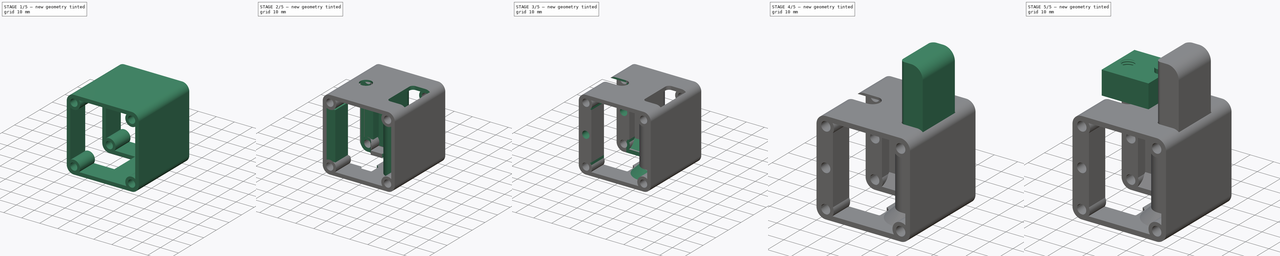
[diagram: build sequence overview — one tinted view per stage of 5, left to right]
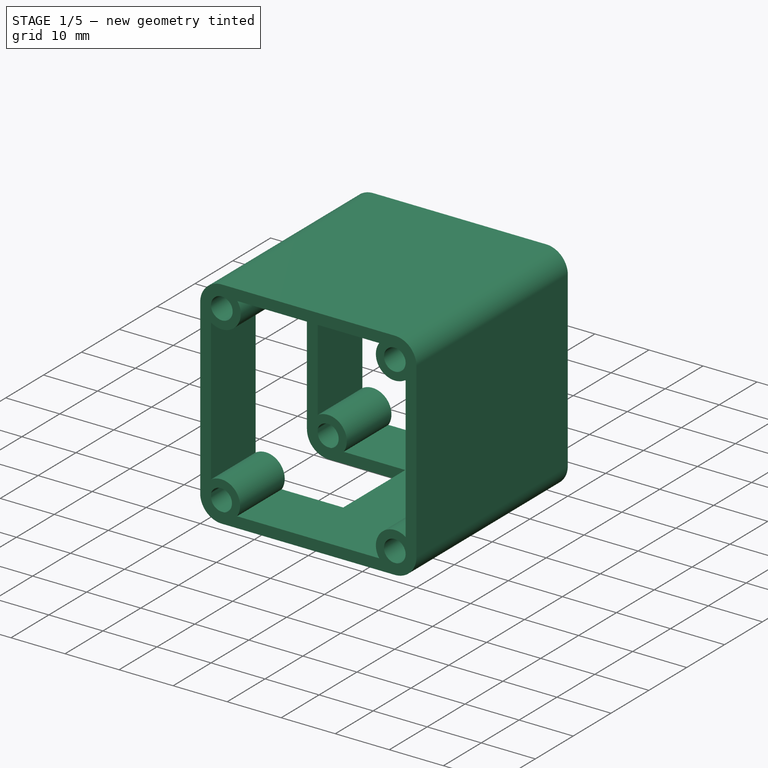
[diagram: stage 1 of 5 — iso view after this stage's code; geometry added in this stage tinted green]
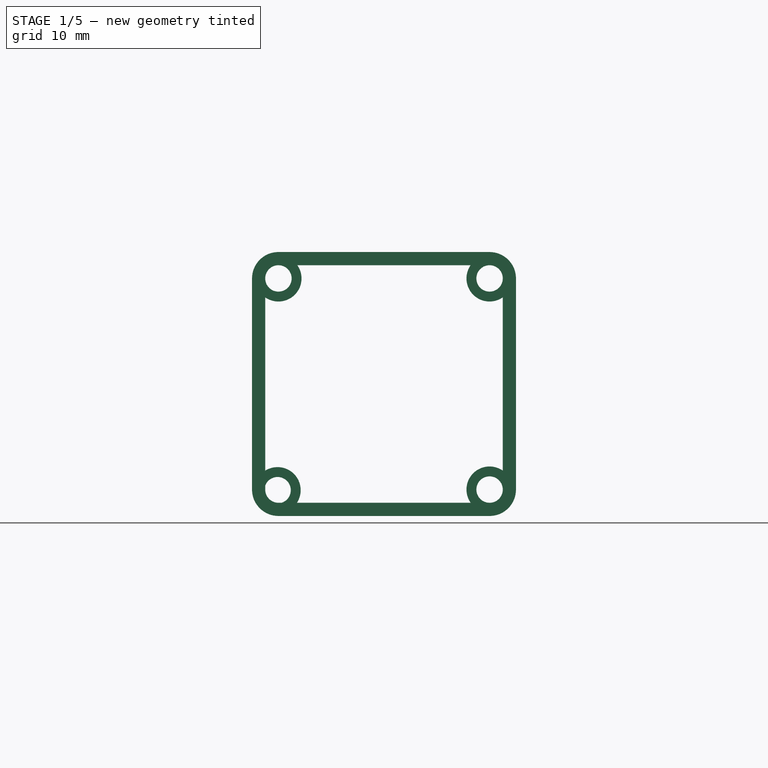
[diagram: stage 1 of 5 — front view after this stage's code; geometry added in this stage tinted green]
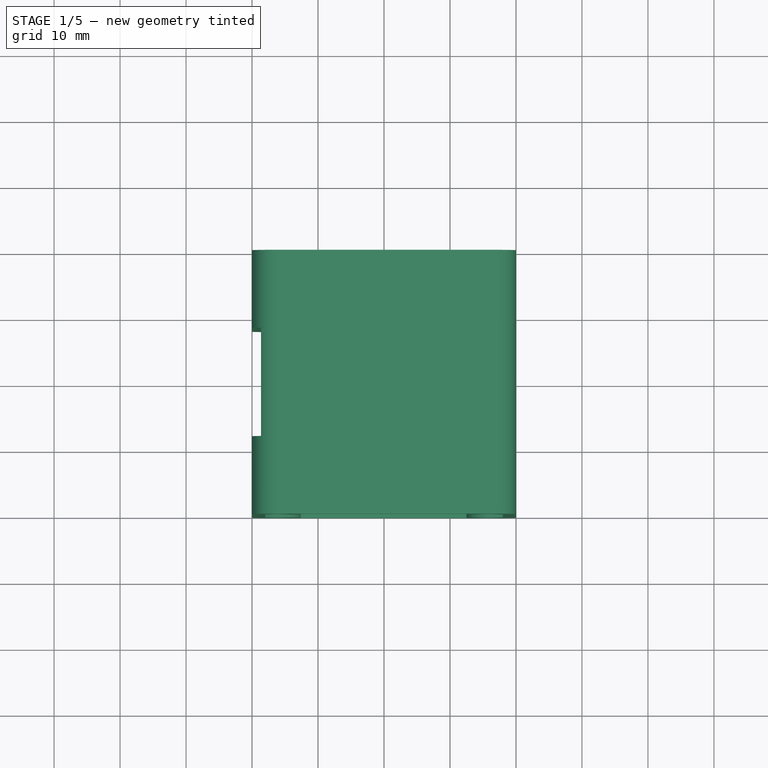
[diagram: stage 1 of 5 — top view after this stage's code; geometry added in this stage tinted green]
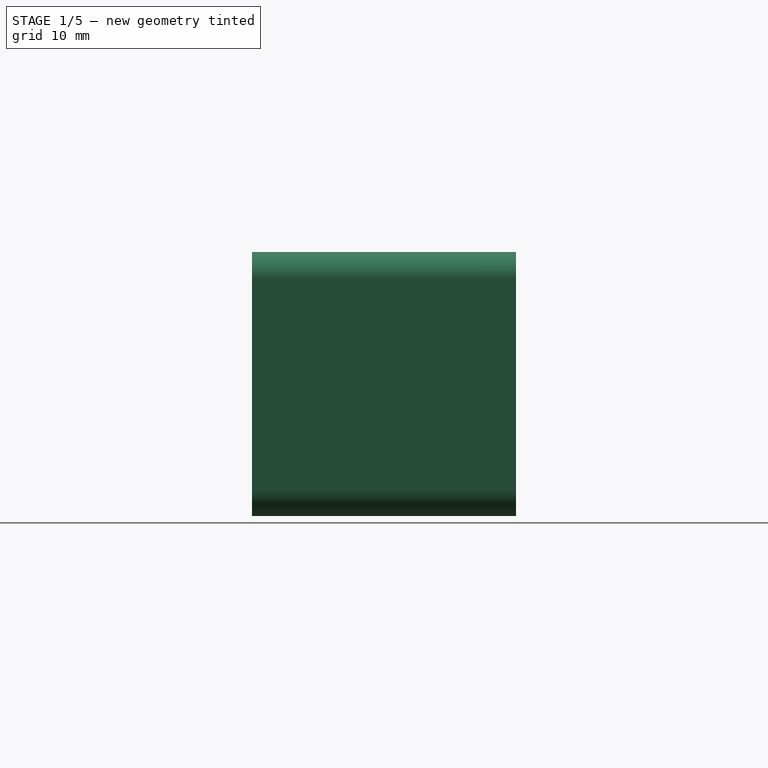
[diagram: stage 1 of 5 — right view after this stage's code; geometry added in this stage tinted green]
FCSTD DOCUMENT  (FreeCAD 0.20R29177 (Git))
Label: AT_801a_extruder_design
License: All rights reserved
LicenseURL: http://en.wikipedia.org/wiki/All_rights_reserved
objects: Sketcher::SketchObject×17, PartDesign::Pocket×10, PartDesign::Pad×10, PartDesign::ShapeBinder×5, PartDesign::Body×4, PartDesign::Chamfer×4, Part::FeaturePython×2, PartDesign::Hole×2, PartDesign::Fillet×2, PartDesign::FeatureBase×1, PartDesign::AdditivePipe×1, PartDesign::SubtractivePipe×1
note: 89 computed .brp shape members not serialized (recipe doc carries the construction recipe); baked Part::Feature solids carry a one-line shape summary decoded from their .brp

FEATURE [Part::FeaturePython] b_V_Slot_20x20x364_Linear_Rail_001_  label="V-Slot 20x20x364 Linear Rail_001"  # a2plus imported part (geometry in sourceFile) (typed FeaturePython)
  a2p_Version = V0.1
  fixedPosition = true
  objectType = a2pPart
  sourceFile = .\V-Slot 20x20x364 Linear Rail.FCStd
  subassemblyImport = false
  timeLastImport = 1656483426
  updateColors = true
FEATURE [PartDesign::FeatureBase] BaseFeature
  BaseFeature = -> b_V_Slot_20x20x364_Linear_Rail_001_
FEATURE [Sketcher::SketchObject] Sketch
  FullyConstrained = false
  MapMode = 5
  Placement = pos=(10,-1.8e-15,0) rot=(0.57735,0.57735,0.57735;2.0944rad)
  Support = -> [BaseFeature]
  sketch-geometry (4):
    g0: LineSegment StartX=-39.6578 StartY=378.391 StartZ=0 EndX=60.3022 EndY=378.391 EndZ=0
    g1: LineSegment StartX=60.3022 StartY=378.391 StartZ=0 EndX=60.3022 EndY=40 EndZ=0
    g2: LineSegment StartX=60.3022 StartY=40 StartZ=0 EndX=-39.6578 EndY=40 EndZ=0
    g3: LineSegment StartX=-39.6578 StartY=40 StartZ=0 EndX=-39.6578 EndY=378.391 EndZ=0
  constraints (9):
    c: Coincident(g0,g1)
    c: Coincident(g1,g2)
    c: Coincident(g2,g3)
    c: Coincident(g3,g0)
    c: Horizontal(g0)
    c: Horizontal(g2)
    c: Vertical(g1)
    c: Vertical(g3)
    c: DistanceY(g-1,g1) = 40
FEATURE [PartDesign::Pocket] Pocket
  BaseFeature = -> BaseFeature
  Direction = (-1,1e-16,1e-16)
  Length = 5
  Length2 = 5
  Profile = -> Sketch
  ReferenceAxis = -> Sketch [N_Axis]
  Type = 1
FEATURE [Sketcher::SketchObject] Sketch001
  FullyConstrained = false
  MapMode = 5
  Placement = pos=(4.4e-15,-4.4e-15,40) rot=(0,0,1;0rad)
  Support = -> [Pocket]
  sketch-geometry (1):
    g0: Circle CenterX=0 CenterY=0 CenterZ=0 NormalX=0 NormalY=0 NormalZ=1 AngleXU=0 Radius=1.17399
  constraints (1):
    c: Coincident(g0,g-1)
FEATURE [PartDesign::Hole] Hole
  BaseFeature = -> Pocket
  CustomThreadClearance = 0
  Depth = 20
  DepthType = 0
  Diameter = 5.026
  DrillForDepth = false
  DrillPoint = 1
  DrillPointAngle = 118
  HoleCutCountersinkAngle = 90
  HoleCutCustomValues = false
  HoleCutDepth = 0
  HoleCutDiameter = 6.1
  HoleCutType = 0
  ModelThread = true
  Profile = -> Sketch001
  Tapered = false
  TaperedAngle = 90
  ThreadClass = 0
  ThreadDepth = 20
  ThreadDepthType = 0
  ThreadDirection = 0
  ThreadFit = 0
  ThreadSize = 14
  ThreadType = 1
  Threaded = true
  UseCustomThreadClearance = false
FEATURE [PartDesign::Body] Body001
  Group = -> [ShapeBinder,Sketch002,Pad,Sketch003,Hole001]
  Origin = -> Origin001
  Tip = -> Hole001
FEATURE [PartDesign::ShapeBinder] ShapeBinder001
  Support = -> [Hole]
  TraceSupport = false
FEATURE [PartDesign::ShapeBinder] ShapeBinder002
  Placement = pos=(0,0,19.5) rot=(0,0,1;0rad)
  Support = -> [Hole001]
  TraceSupport = false
FEATURE [Sketcher::SketchObject] Sketch004
  AttachmentOffset = pos=(0,0,10) rot=(0,0,1;0rad)
  ExternalGeometry = -> [ShapeBinder001]
  FullyConstrained = true
  MapMode = 5
  Placement = pos=(3.6e-15,-20,2.2e-15) rot=(1,0,0;1.5708rad)
  Support = -> [ShapeBinder001]
  sketch-geometry (20):
    g0: ArcOfCircle CenterX=-6 CenterY=9 CenterZ=0 NormalX=0 NormalY=0 NormalZ=1 AngleXU=0 Radius=4 StartAngle=3.14159 EndAngle=4.71239
    g1: LineSegment StartX=-10 StartY=9 StartZ=0 EndX=-10 EndY=41 EndZ=0
    g2: ArcOfCircle CenterX=-6 CenterY=41 CenterZ=0 NormalX=0 NormalY=0 NormalZ=1 AngleXU=0 Radius=4 StartAngle=1.5708 EndAngle=3.14159
    g3: LineSegment StartX=-6 StartY=45 StartZ=0 EndX=26 EndY=45 EndZ=0
    g4: ArcOfCircle CenterX=26 CenterY=41 CenterZ=0 NormalX=0 NormalY=0 NormalZ=1 AngleXU=0 Radius=4 StartAngle=0 EndAngle=1.5708
    g5: LineSegment StartX=30 StartY=41 StartZ=0 EndX=30 EndY=9 EndZ=0
    g6: ArcOfCircle CenterX=26 CenterY=9 CenterZ=0 NormalX=0 NormalY=0 NormalZ=1 AngleXU=0 Radius=4 StartAngle=4.71239 EndAngle=6.28319
    g7: LineSegment StartX=26 StartY=5 StartZ=0 EndX=-6 EndY=5 EndZ=0
    g8: GeomPoint X=-10 Y=5 Z=0
    g9: GeomPoint X=30 Y=45 Z=0
    g10: ArcOfCircle CenterX=-6 CenterY=41 CenterZ=0 NormalX=0 NormalY=0 NormalZ=1 AngleXU=0 Radius=2 StartAngle=1.5708 EndAngle=3.14159
    g11: LineSegment StartX=-6 StartY=43 StartZ=0 EndX=26 EndY=43 EndZ=0
    g12: ArcOfCircle CenterX=26 CenterY=41 CenterZ=0 NormalX=0 NormalY=0 NormalZ=1 AngleXU=0 Radius=2 StartAngle=0 EndAngle=1.5708
    g13: LineSegment StartX=28 StartY=41 StartZ=0 EndX=28 EndY=9 EndZ=0
    g14: ArcOfCircle CenterX=26 CenterY=9 CenterZ=0 NormalX=0 NormalY=0 NormalZ=1 AngleXU=0 Radius=2 StartAngle=4.71239 EndAngle=6.28319
    g15: LineSegment StartX=26 StartY=7 StartZ=0 EndX=-6 EndY=7 EndZ=0
    g16: ArcOfCircle CenterX=-6 CenterY=9 CenterZ=0 NormalX=0 NormalY=0 NormalZ=1 AngleXU=0 Radius=2 StartAngle=3.14159 EndAngle=4.71239
    g17: LineSegment StartX=-8 StartY=9 StartZ=0 EndX=-8 EndY=41 EndZ=0
    g18: GeomPoint X=-8 Y=43 Z=0
    g19: GeomPoint X=28 Y=7 Z=0
  constraints (46):
    c: Tangent(g0,g1) = 1.5708
    c: Tangent(g1,g2) = 1.5708
    c: Tangent(g2,g3) = 1.5708
    c: Tangent(g3,g4) = 1.5708
    c: Tangent(g4,g5) = 1.5708
    c: Tangent(g5,g6) = 1.5708
    c: Tangent(g6,g7) = 1.5708
    c: Tangent(g7,g0) = 1.5708
    c: Horizontal(g3)
    c: Horizontal(g7)
    c: Vertical(g1)
    c: Vertical(g5)
    c: Equal(g0,g2)
    c: Equal(g2,g4)
    c: Equal(g4,g6)
    c: PointOnObject(g8,g1)
    c: PointOnObject(g8,g7)
    c: PointOnObject(g9,g3)
    c: PointOnObject(g9,g5)
    c: DistanceX(g1,g4) = 40
    c: DistanceY(g6,g3) = 40
    c: DistanceX(g2,g4) = 32
    c: Vertical(g0,g-3)
    c: DistanceY(g-4,g2) = 5
    c: Tangent(g10,g11) = 1.5708
    c: Tangent(g11,g12) = 1.5708
    c: Tangent(g12,g13) = 1.5708
    c: Tangent(g13,g14) = 1.5708
    c: Tangent(g14,g15) = 1.5708
    c: Tangent(g15,g16) = 1.5708
    c: Tangent(g16,g17) = 1.5708
    c: Tangent(g17,g10) = 1.5708
    c: Horizontal(g11)
    c: Horizontal(g15)
    c: Vertical(g13)
    c: Vertical(g17)
    c: Equal(g10,g12)
    c: Equal(g12,g14)
    c: Equal(g14,g16)
    c: PointOnObject(g18,g11)
    c: PointOnObject(g18,g17)
    c: PointOnObject(g19,g13)
    c: PointOnObject(g19,g15)
    c: Coincident(g10,g2)
    c: Coincident(g14,g6)
    c: DistanceX(g13,g5) = 2
FEATURE [PartDesign::Pad] Pad001
  Direction = (2e-16,-1,2e-16)
  Length = 40
  Length2 = 10
  Profile = -> Sketch004
  ReferenceAxis = -> Sketch004 [N_Axis]
  Reversed = true
  Type = 0
FEATURE [Sketcher::SketchObject] Sketch005
  ExternalGeometry = -> [Pad001]
  FullyConstrained = false
  MapMode = 5
  Placement = pos=(3.8e-15,-20,4.2e-15) rot=(1,0,0;1.5708rad)
  Support = -> [Pad001]
  sketch-geometry (13):
    g0: LineSegment StartX=26 StartY=9 StartZ=0 EndX=26 EndY=41 EndZ=0
    g1: LineSegment StartX=26 StartY=41 StartZ=0 EndX=-6 EndY=41 EndZ=0
    g2: LineSegment StartX=-6 StartY=41 StartZ=0 EndX=-6 EndY=9 EndZ=0
    g3: LineSegment StartX=-6 StartY=9 StartZ=0 EndX=26 EndY=9 EndZ=0
    g4: Circle CenterX=10 CenterY=25 CenterZ=0 NormalX=0 NormalY=0 NormalZ=1 AngleXU=0 Radius=22.6274
    g5: Circle CenterX=26 CenterY=41 CenterZ=0 NormalX=0 NormalY=0 NormalZ=1 AngleXU=0 Radius=3.5
    g6: Circle CenterX=-6 CenterY=41 CenterZ=0 NormalX=0 NormalY=0 NormalZ=1 AngleXU=0 Radius=3.5
    g7: Circle CenterX=-6.12931 CenterY=8.90586 CenterZ=0 NormalX=0 NormalY=0 NormalZ=1 AngleXU=0 Radius=3.5
    g8: Circle CenterX=26 CenterY=9 CenterZ=0 NormalX=0 NormalY=0 NormalZ=1 AngleXU=0 Radius=3.5
    g9: Circle CenterX=-6 CenterY=41 CenterZ=0 NormalX=0 NormalY=0 NormalZ=1 AngleXU=0 Radius=2
    g10: Circle CenterX=26 CenterY=41 CenterZ=0 NormalX=0 NormalY=0 NormalZ=1 AngleXU=0 Radius=2
    g11: Circle CenterX=-6.12931 CenterY=8.90586 CenterZ=0 NormalX=0 NormalY=0 NormalZ=1 AngleXU=0 Radius=2
    g12: Circle CenterX=26 CenterY=9 CenterZ=0 NormalX=0 NormalY=0 NormalZ=1 AngleXU=0 Radius=2
  constraints (29):
    c: Coincident(g0,g1)
    c: Coincident(g1,g2)
    c: Coincident(g2,g3)
    c: Coincident(g3,g0)
    c: Equal(g0,g1)
    c: Equal(g0,g2)
    c: Equal(g0,g3)
    c: PointOnObject(g0,g4)
    c: PointOnObject(g1,g4)
    c: PointOnObject(g2,g4)
    c: PointOnObject(g3,g4)
    c: Symmetric(g-3,g-4,g4)
    c: Horizontal(g1)
    c: DistanceX(g1,g1) = 32
    c: Coincident(g5,g0)
    c: Coincident(g6,g1)
    c: Coincident(g8,g0)
    c: Equal(g7,g6)
    c: Equal(g6,g5)
    c: Equal(g5,g8)
    c: Coincident(g9,g6)
    c: Coincident(g10,g5)
    c: Coincident(g11,g7)
    c: Coincident(g12,g8)
    c: Equal(g9,g11)
    c: Equal(g11,g12)
    c: Equal(g12,g10)
    c: Radius(g10) = 2
    c: Radius(g5) = 3.5
FEATURE [PartDesign::Pad] Pad002
  BaseFeature = -> Pad001
  Direction = (2e-16,-1,2e-16)
  Length = 40
  Length2 = 10
  Profile = -> Sketch005
  ReferenceAxis = -> Sketch005 [N_Axis]
  Reversed = true
  Type = 0
FEATURE [Sketcher::SketchObject] Sketch006
  ExternalGeometry = -> [ShapeBinder001]
  FullyConstrained = false
  MapMode = 5
  Placement = pos=(0,0,0) rot=(1,0,0;3.14159rad)
  Support = -> [ShapeBinder001]
  sketch-geometry (4):
    g0: LineSegment StartX=8.2 StartY=8.2 StartZ=0 EndX=-11.6601 EndY=8.2 EndZ=0
    g1: LineSegment StartX=-11.6601 StartY=8.2 StartZ=0 EndX=-11.6601 EndY=-8.2 EndZ=0
    g2: LineSegment StartX=-11.6601 StartY=-8.2 StartZ=0 EndX=8.2 EndY=-8.2 EndZ=0
    g3: LineSegment StartX=8.2 StartY=-8.2 StartZ=0 EndX=8.2 EndY=8.2 EndZ=0
  constraints (11):
    c: Coincident(g0,g1)
    c: Coincident(g1,g2)
    c: Coincident(g2,g3)
    c: Coincident(g3,g0)
    c: Horizontal(g0)
    c: Horizontal(g2)
    c: Vertical(g1)
    c: Vertical(g3)
    c: Horizontal(g0,g-3)
    c: Vertical(g0,g-4)
    c: Horizontal(g2,g-6)
FEATURE [PartDesign::Pocket] Pocket001
  BaseFeature = -> Pad002
  Direction = (0,0,1)
  Length = 44
  Length2 = 5
  Profile = -> Sketch006
  ReferenceAxis = -> Sketch006 [N_Axis]
  Type = 0
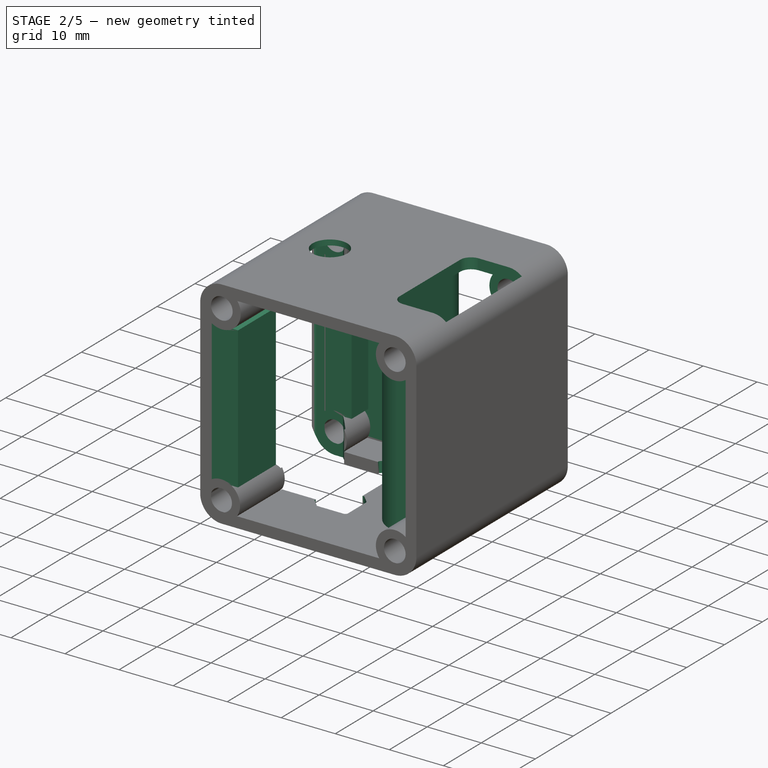
[diagram: stage 2 of 5 — iso view after this stage's code; geometry added in this stage tinted green]
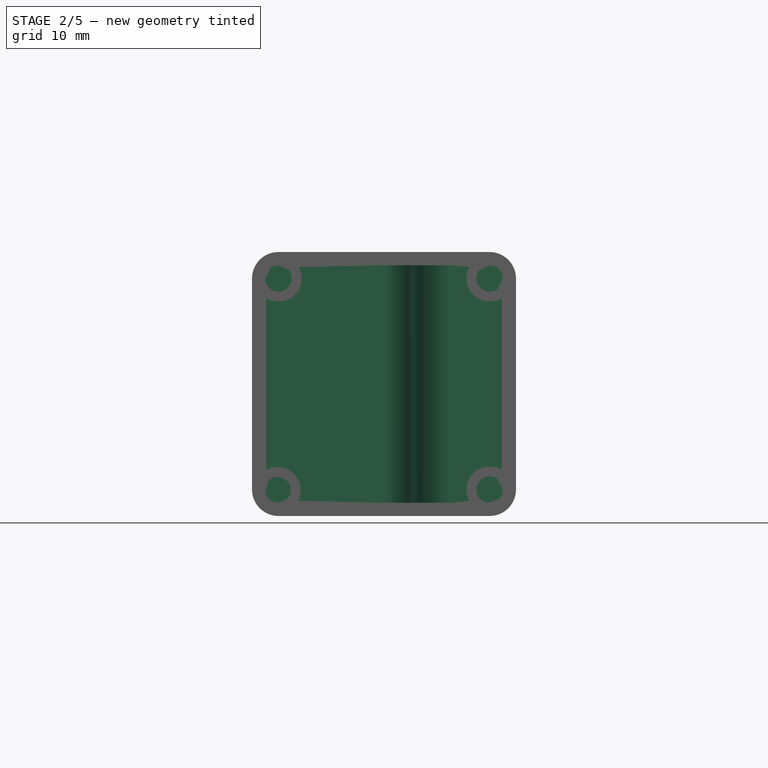
[diagram: stage 2 of 5 — front view after this stage's code; geometry added in this stage tinted green]
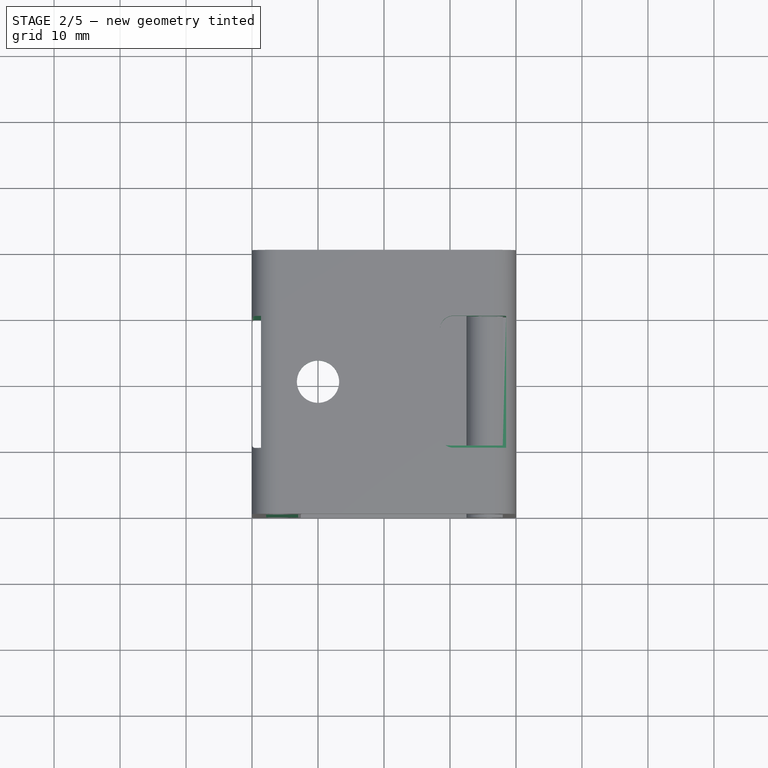
[diagram: stage 2 of 5 — top view after this stage's code; geometry added in this stage tinted green]
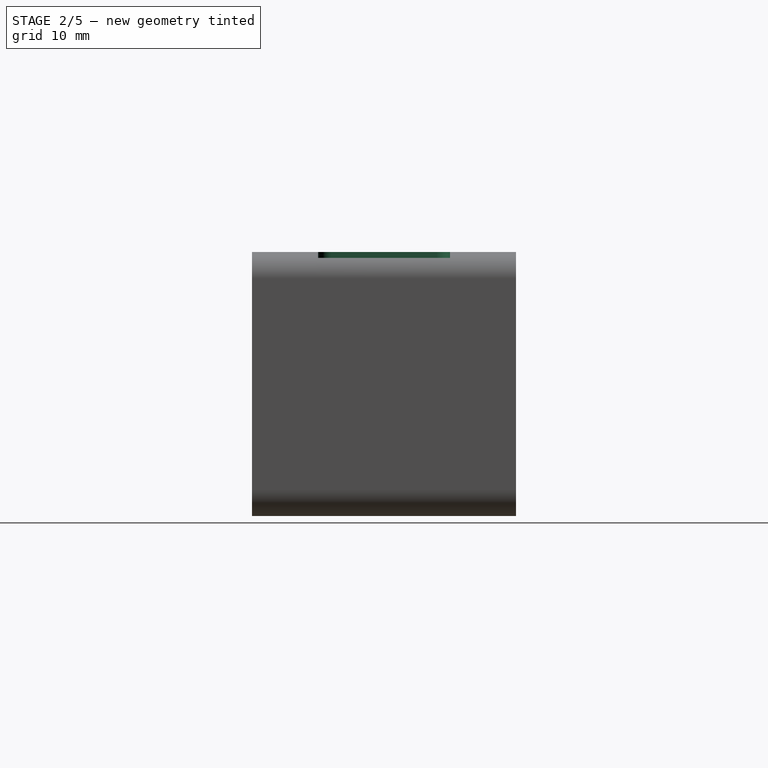
[diagram: stage 2 of 5 — right view after this stage's code; geometry added in this stage tinted green]
FEATURE [PartDesign::Pocket] Pocket002
  BaseFeature = -> Pocket001
  Direction = (0,0,1)
  Length = 44
  Length2 = 5
  Profile = -> ShapeBinder001 [Face2]
  Type = 0
FEATURE [Sketcher::SketchObject] Sketch007
  FullyConstrained = true
  MapMode = 5
  Placement = pos=(0,0,44) rot=(1,0,0;3.14159rad)
  Support = -> [Pocket002]
  sketch-geometry (1):
    g0: Circle CenterX=0 CenterY=0 CenterZ=0 NormalX=0 NormalY=0 NormalZ=1 AngleXU=0 Radius=3.2
  constraints (2):
    c: Coincident(g0,g-1)
    c: Radius(g0) = 3.2
FEATURE [PartDesign::Pocket] Pocket003
  BaseFeature = -> Pocket002
  Direction = (0,0,1)
  Length = 5
  Length2 = 5
  Profile = -> Sketch007
  ReferenceAxis = -> Sketch007 [N_Axis]
  Type = 0
FEATURE [Sketcher::SketchObject] Sketch008
  ExternalGeometry = -> [Pocket003]
  FullyConstrained = true
  MapMode = 5
  Placement = pos=(0,1.1e-15,5) rot=(1,0,0;3.14159rad)
  Support = -> [Pocket003]
  sketch-geometry (7):
    g0: LineSegment StartX=-10 StartY=-15 StartZ=0 EndX=10 EndY=-15 EndZ=0
    g1: LineSegment StartX=15 StartY=-10 StartZ=0 EndX=15 EndY=5 EndZ=0
    g2: LineSegment StartX=20 StartY=10 StartZ=0 EndX=30 EndY=10 EndZ=0
    g3: ArcOfCircle CenterX=20 CenterY=5 CenterZ=0 NormalX=0 NormalY=0 NormalZ=1 AngleXU=0 Radius=5 StartAngle=1.5708 EndAngle=3.14159
    g4: GeomPoint X=15 Y=10 Z=0
    g5: ArcOfCircle CenterX=10 CenterY=-10 CenterZ=0 NormalX=0 NormalY=0 NormalZ=1 AngleXU=0 Radius=5 StartAngle=4.71239 EndAngle=6.28319
    g6: GeomPoint X=15 Y=-15 Z=0
  constraints (18):
    c: PointOnObject(g0,g-4)
    c: Horizontal(g0)
    c: Vertical(g1)
    c: PointOnObject(g2,g-5)
    c: Horizontal(g2)
    c: PointOnObject(g4,g1)
    c: PointOnObject(g4,g2)
    c: Tangent(g1,g3) = 1.5708
    c: Tangent(g2,g3) = 1.5708
    c: DistanceY(g2,g-5) = 10
    c: Distance(g1,g-5) = 15
    c: PointOnObject(g6,g0)
    c: PointOnObject(g6,g1)
    c: Tangent(g0,g5) = -1.5708
    c: Tangent(g1,g5) = -1.5708
    c: Radius(g5) = 5
    c: Radius(g3) = 5
    c: DistanceY(g-3,g0) = 5
FEATURE [Sketcher::SketchObject] Sketch009
  ExternalGeometry = -> [Sketch008]
  FullyConstrained = true
  MapMode = 5
  Placement = pos=(30,5.4e-15,0) rot=(0.57735,0.57735,0.57735;2.0944rad)
  Support = -> [Pocket003]
  sketch-geometry (4):
    g0: LineSegment StartX=-9.4 StartY=5 StartZ=0 EndX=-10.6 EndY=5 EndZ=0
    g1: LineSegment StartX=-10.6 StartY=5 StartZ=0 EndX=-10.6 EndY=45 EndZ=0
    g2: LineSegment StartX=-10.6 StartY=45 StartZ=0 EndX=-9.4 EndY=45 EndZ=0
    g3: LineSegment StartX=-9.4 StartY=45 StartZ=0 EndX=-9.4 EndY=5 EndZ=0
  constraints (11):
    c: Coincident(g0,g1)
    c: Coincident(g1,g2)
    c: Coincident(g2,g3)
    c: Coincident(g3,g0)
    c: Horizontal(g0)
    c: Horizontal(g2)
    c: Vertical(g1)
    c: Vertical(g3)
    c: DistanceY(g3,g3) = 40
    c: Symmetric(g0,g0,g-3)
    c: DistanceX(g2,g2) = 1.2
FEATURE [PartDesign::AdditivePipe] AdditivePipe
  AuxilleryCurvelinear = true
  AuxillerySpineTangent = false
  BaseFeature = -> Pocket003
  Binormal = (0,0,0)
  Mode = 0
  Profile = -> Sketch009
  Spine = -> Sketch008
  SpineTangent = false
  Transformation = 0
  Transition = 0
FEATURE [PartDesign::Pocket] Pocket004
  BaseFeature = -> AdditivePipe
  Direction = (0,-1,-1e-16)
  Length = 5
  Length2 = 5
  Profile = -> AdditivePipe [Face159,Face160,Face163,Face162]
  Type = 0
FEATURE [Sketcher::SketchObject] Sketch010
  ExternalGeometry = -> [Pocket004]
  FullyConstrained = true
  MapMode = 5
  Placement = pos=(0,9.9e-15,45) rot=(0,0,1;0rad)
  Support = -> [Pocket004]
  sketch-geometry (8):
    g0: LineSegment StartX=28.5 StartY=-10 StartZ=0 EndX=20.5 EndY=-10 EndZ=0
    g1: LineSegment StartX=18.5 StartY=-8 StartZ=0 EndX=18.5 EndY=8 EndZ=0
    g2: LineSegment StartX=20.5 StartY=10 StartZ=0 EndX=28.5 EndY=10 EndZ=0
    g3: LineSegment StartX=28.5 StartY=10 StartZ=0 EndX=28.5 EndY=-10 EndZ=0
    g4: ArcOfCircle CenterX=20.5 CenterY=-8 CenterZ=0 NormalX=0 NormalY=0 NormalZ=1 AngleXU=0 Radius=2 StartAngle=3.14159 EndAngle=4.71239
    g5: GeomPoint X=18.5 Y=-10 Z=0
    g6: ArcOfCircle CenterX=20.5 CenterY=8 CenterZ=0 NormalX=0 NormalY=0 NormalZ=1 AngleXU=0 Radius=2 StartAngle=1.5708 EndAngle=3.14159
    g7: GeomPoint X=18.5 Y=10 Z=0
  constraints (20):
    c: Coincident(g2,g3)
    c: Coincident(g3,g0)
    c: Horizontal(g0)
    c: Horizontal(g2)
    c: Vertical(g1)
    c: Vertical(g3)
    c: DistanceY(g3,g3) = 20
    c: PointOnObject(g5,g0)
    c: PointOnObject(g5,g1)
    c: Tangent(g0,g4) = 1.5708
    c: Tangent(g1,g4) = 1.5708
    c: PointOnObject(g7,g1)
    c: PointOnObject(g7,g2)
    c: Tangent(g1,g6) = 1.5708
    c: Tangent(g2,g6) = 1.5708
    c: Equal(g4,g6)
    c: Radius(g6) = 2
    c: DistanceX(g1,g2) = 10
    c: DistanceY(g0,g-3) = 0.6
    c: DistanceX(g-4,g2) = 0.5
FEATURE [PartDesign::Pocket] Pocket005
  BaseFeature = -> Pocket004
  Direction = (0,-2e-16,-1)
  Length = 15
  Length2 = 5
  Profile = -> Sketch010
  ReferenceAxis = -> Sketch010 [N_Axis]
  Type = 0
FEATURE [PartDesign::Body] Body003  label="pipe"
  Group = -> [ShapeBinder003,ShapeBinder004,Sketch011,Pad003,Sketch012,Pad004,Fillet,Sketch013,Pocket006,SubtractivePipe,Pad005,Fillet001,Pad006]
  Origin = -> Origin003
  Placement = pos=(0,0,-5.9) rot=(0,0,1;0rad)
  Tip = -> Pad006
FEATURE [PartDesign::Pad] Pad007
  BaseFeature = -> Pocket005
  Direction = (1,2e-16,0)
  Length = 5
  Length2 = 10
  Profile = -> Pocket005 [Face18,Face123]
  Type = 0
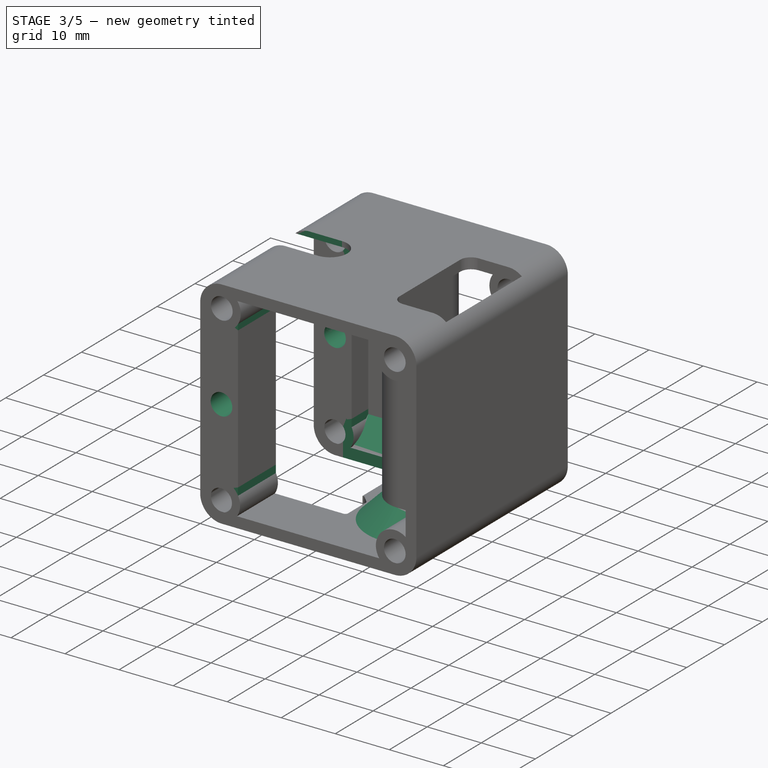
[diagram: stage 3 of 5 — iso view after this stage's code; geometry added in this stage tinted green]
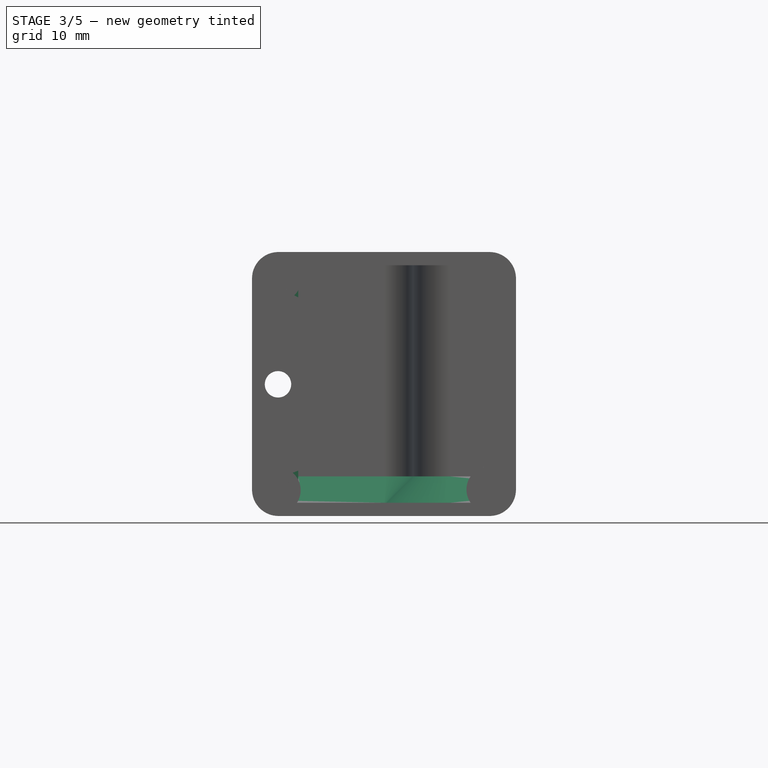
[diagram: stage 3 of 5 — front view after this stage's code; geometry added in this stage tinted green]
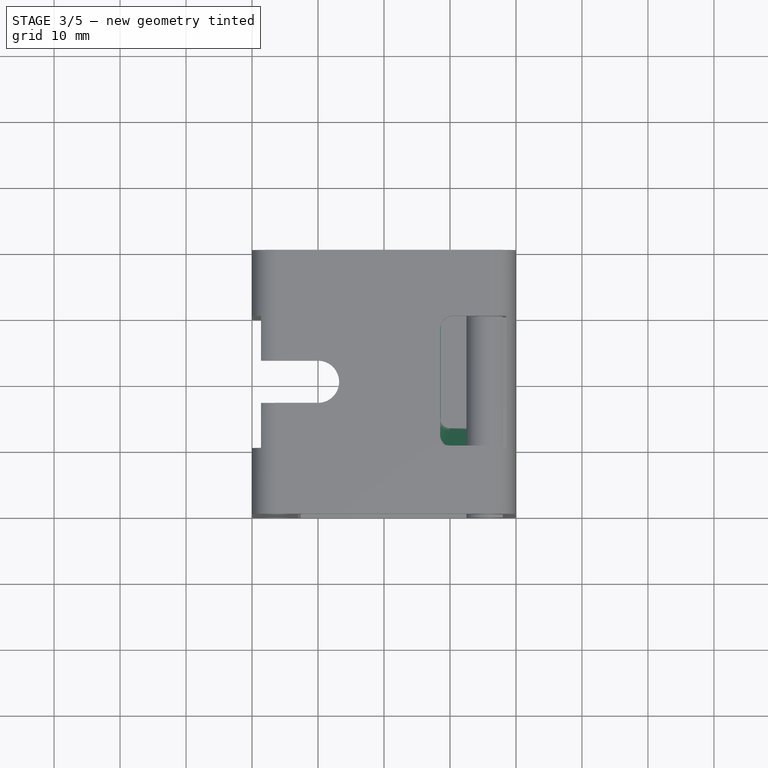
[diagram: stage 3 of 5 — top view after this stage's code; geometry added in this stage tinted green]
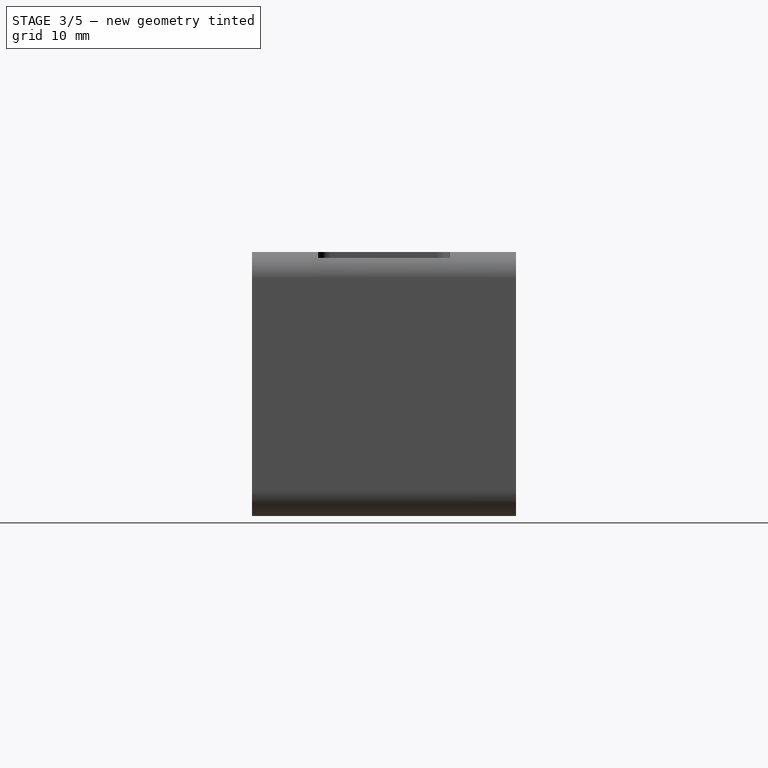
[diagram: stage 3 of 5 — right view after this stage's code; geometry added in this stage tinted green]
FEATURE [PartDesign::Pad] Pad008
  BaseFeature = -> Pad007
  Direction = (0,-2e-16,-1)
  Length = 1.5
  Length2 = 10
  Profile = -> Pad007 [Face117,Face155]
  Type = 0
FEATURE [PartDesign::Pad] Pad009
  BaseFeature = -> Pad008
  Direction = (0,2e-16,1)
  Length = 1.5
  Length2 = 10
  Profile = -> Pad008 [Face115,Face154]
  Type = 0
FEATURE [Sketcher::SketchObject] Sketch014
  ExternalGeometry = -> [Pad009]
  FullyConstrained = false
  MapMode = 5
  Placement = pos=(0,1.1e-15,5) rot=(1,0,0;3.14159rad)
  Support = -> [Pad009]
  sketch-geometry (4):
    g0: LineSegment StartX=-18.1615 StartY=10 StartZ=0 EndX=8.2 EndY=10 EndZ=0
    g1: LineSegment StartX=8.2 StartY=10 StartZ=0 EndX=8.2 EndY=-10 EndZ=0
    g2: LineSegment StartX=8.2 StartY=-10 StartZ=0 EndX=-18.1615 EndY=-10 EndZ=0
    g3: LineSegment StartX=-18.1615 StartY=-10 StartZ=0 EndX=-18.1615 EndY=10 EndZ=0
  constraints (11):
    c: Coincident(g0,g1)
    c: Coincident(g1,g2)
    c: Coincident(g2,g3)
    c: Coincident(g3,g0)
    c: Horizontal(g0)
    c: Horizontal(g2)
    c: Vertical(g1)
    c: Vertical(g3)
    c: PointOnObject(g-4,g1)
    c: Horizontal(g0,g-3)
    c: Horizontal(g2,g-5)
FEATURE [PartDesign::Pocket] Pocket007
  BaseFeature = -> Pad009
  Direction = (0,2e-16,1)
  Length = 39
  Length2 = 5
  Profile = -> Sketch014
  ReferenceAxis = -> Sketch014 [N_Axis]
  Type = 0
FEATURE [Sketcher::SketchObject] Sketch015
  FullyConstrained = false
  MapMode = 5
  Placement = pos=(0,0,44) rot=(1,0,0;3.14159rad)
  Support = -> [Pocket007]
  sketch-geometry (4):
    g0: ArcOfCircle CenterX=0 CenterY=0 CenterZ=0 NormalX=0 NormalY=0 NormalZ=1 AngleXU=0 Radius=3.2 StartAngle=4.71239 EndAngle=7.85398
    g1: ArcOfCircle CenterX=-13.374 CenterY=2e-16 CenterZ=0 NormalX=0 NormalY=0 NormalZ=1 AngleXU=0 Radius=3.2 StartAngle=1.5708 EndAngle=4.71239
    g2: LineSegment StartX=1e-15 StartY=3.2 StartZ=0 EndX=-13.374 EndY=3.2 EndZ=0
    g3: LineSegment StartX=-13.374 StartY=-3.2 StartZ=0 EndX=0 EndY=-3.2 EndZ=0
  constraints (8):
    c: Tangent(g0,g2) = -1.5708
    c: Tangent(g2,g1) = -1.5708
    c: Tangent(g1,g3) = -1.5708
    c: Tangent(g3,g0) = -1.5708
    c: Equal(g0,g1)
    c: Coincident(g0,g-1)
    c: Horizontal(g2)
    c: Radius(g1) = 3.2
FEATURE [PartDesign::Pocket] Pocket008
  BaseFeature = -> Pocket007
  Direction = (0,0,1)
  Length = 5
  Length2 = 5
  Profile = -> Sketch015
  ReferenceAxis = -> Sketch015 [N_Axis]
  Type = 0
FEATURE [Sketcher::SketchObject] Sketch016
  ExternalGeometry = -> [Pocket008]
  FullyConstrained = true
  MapMode = 5
  Placement = pos=(3.6e-15,-20,0) rot=(1,0,0;1.5708rad)
  Support = -> [Pocket008]
  sketch-geometry (1):
    g0: Circle CenterX=-6.06466 CenterY=24.9529 CenterZ=0 NormalX=0 NormalY=0 NormalZ=1 AngleXU=0 Radius=2
  constraints (2):
    c: Symmetric(g-3,g-4,g0)
    c: Radius(g0) = 2
FEATURE [PartDesign::Pocket] Pocket009
  BaseFeature = -> Pocket008
  Direction = (-2e-16,1,-2e-16)
  Length = 5
  Length2 = 5
  Profile = -> Sketch016
  ReferenceAxis = -> Sketch016 [N_Axis]
  Type = 1
FEATURE [PartDesign::Chamfer] Chamfer
  Angle = 45
  Base = -> Pocket009 [Edge151]
  BaseFeature = -> Pocket009
  ChamferType = 0
  FlipDirection = false
  Size = 4
  Size2 = 1
  SupportTransform = false
  UseAllEdges = false
FEATURE [PartDesign::Chamfer] Chamfer001
  Angle = 45
  Base = -> Chamfer [Edge550]
  BaseFeature = -> Chamfer
  ChamferType = 0
  FlipDirection = false
  Size = 3
  Size2 = 1
  SupportTransform = false
  UseAllEdges = false
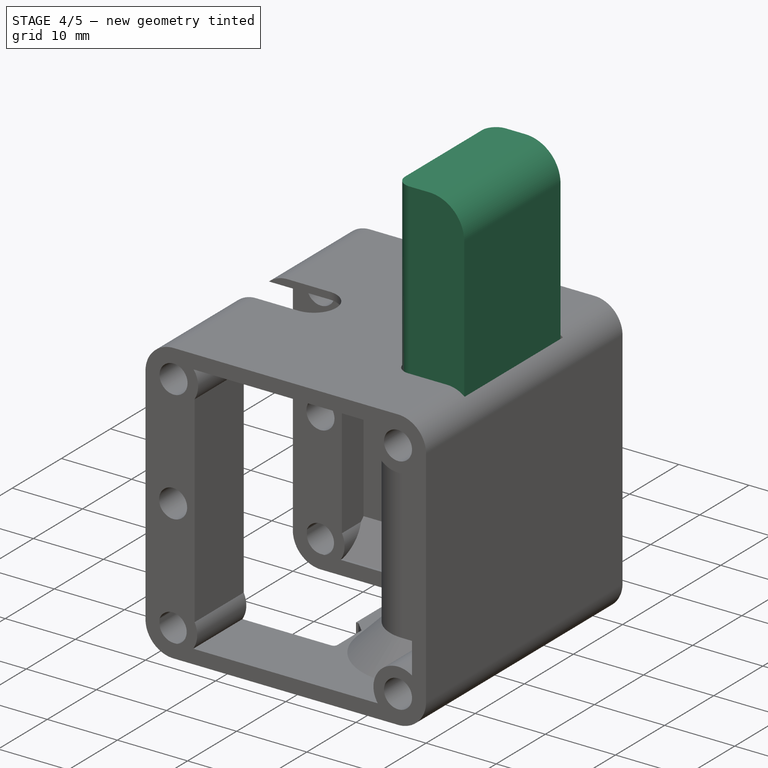
[diagram: stage 4 of 5 — iso view after this stage's code; geometry added in this stage tinted green]
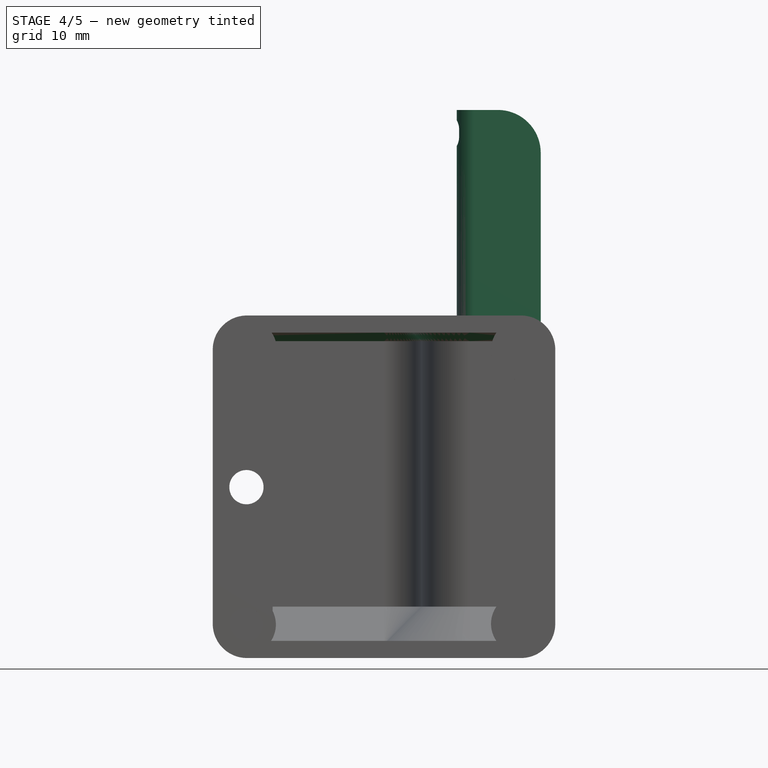
[diagram: stage 4 of 5 — front view after this stage's code; geometry added in this stage tinted green]
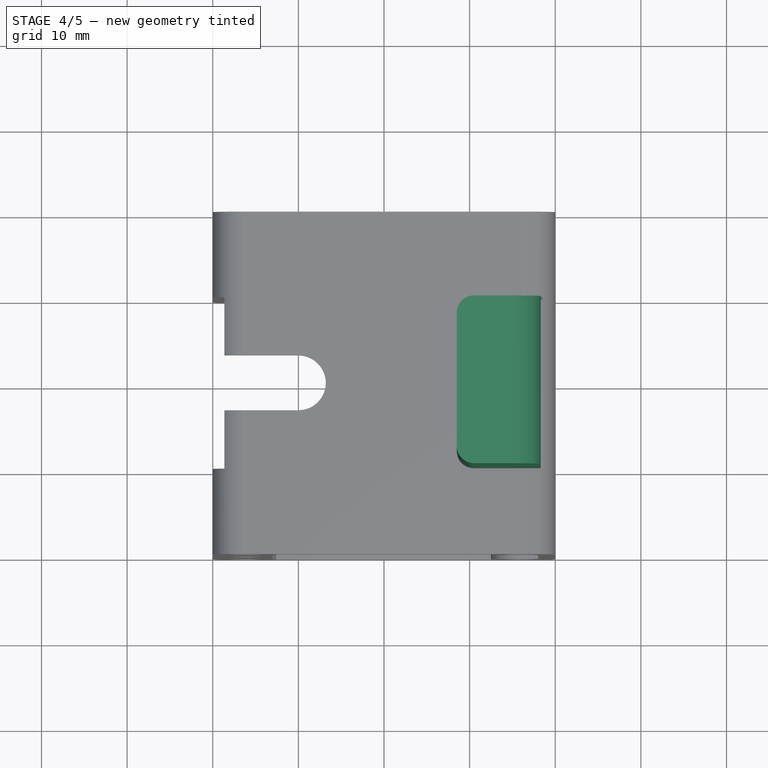
[diagram: stage 4 of 5 — top view after this stage's code; geometry added in this stage tinted green]
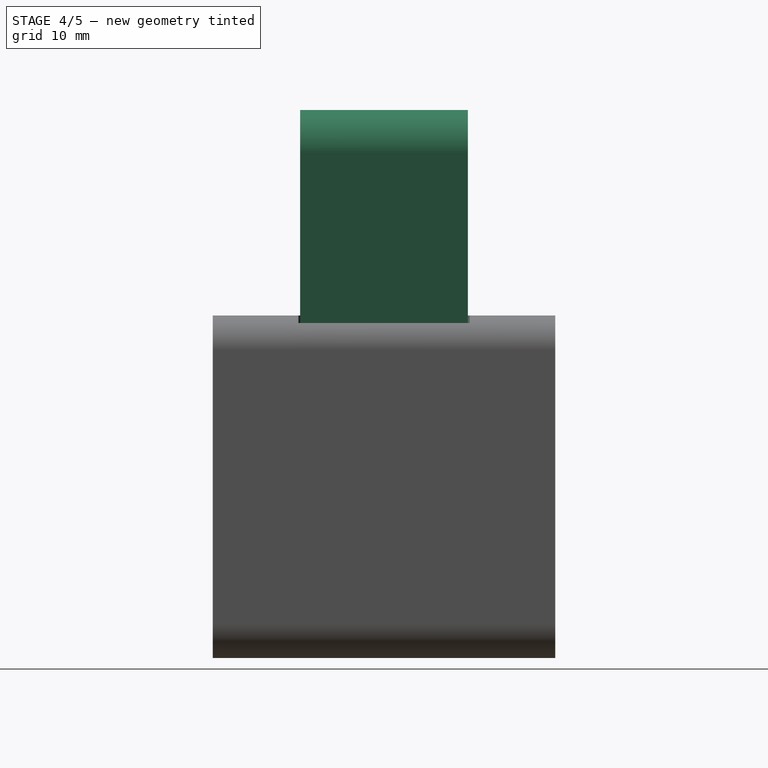
[diagram: stage 4 of 5 — right view after this stage's code; geometry added in this stage tinted green]
FEATURE [PartDesign::ShapeBinder] ShapeBinder003
  Support = -> [Pocket005]
  TraceSupport = false
FEATURE [PartDesign::ShapeBinder] ShapeBinder004
  Placement = pos=(0,0,19.5) rot=(0,0,1;0rad)
  Support = -> [Hole001]
  TraceSupport = false
FEATURE [Sketcher::SketchObject] Sketch011
  ExternalGeometry = -> [ShapeBinder003]
  FullyConstrained = true
  MapMode = 5
  Placement = pos=(0,9.9e-15,45) rot=(0,0,1;0rad)
  Support = -> [ShapeBinder003]
  sketch-geometry (14):
    g0: LineSegment StartX=28.3 StartY=9.8 StartZ=0 EndX=20.5 EndY=9.8 EndZ=0
    g1: LineSegment StartX=18.5 StartY=7.8 StartZ=0 EndX=18.5 EndY=-7.8 EndZ=0
    g2: LineSegment StartX=20.5 StartY=-9.8 StartZ=0 EndX=28.3 EndY=-9.8 EndZ=0
    g3: LineSegment StartX=28.3 StartY=-9.8 StartZ=0 EndX=28.3 EndY=9.8 EndZ=0
    g4: ArcOfCircle CenterX=20.5 CenterY=-7.8 CenterZ=0 NormalX=0 NormalY=0 NormalZ=1 AngleXU=0 Radius=2 StartAngle=3.14159 EndAngle=4.71239
    g5: GeomPoint X=18.5 Y=-9.8 Z=0
    g6: ArcOfCircle CenterX=20.5 CenterY=7.8 CenterZ=0 NormalX=0 NormalY=0 NormalZ=1 AngleXU=0 Radius=2 StartAngle=1.5708 EndAngle=3.14159
    g7: GeomPoint X=18.5 Y=9.8 Z=0
    g8: LineSegment StartX=27.3 StartY=-8.8 StartZ=0 EndX=27.3 EndY=8.8 EndZ=0
    g9: LineSegment StartX=27.3 StartY=8.8 StartZ=0 EndX=22.5 EndY=8.8 EndZ=0
    g10: ArcOfCircle CenterX=22.5 CenterY=6.8 CenterZ=0 NormalX=0 NormalY=0 NormalZ=1 AngleXU=0 Radius=2 StartAngle=1.5708 EndAngle=3.14159
    g11: LineSegment StartX=20.5 StartY=6.8 StartZ=0 EndX=20.5 EndY=-6.8 EndZ=0
    g12: ArcOfCircle CenterX=22.5 CenterY=-6.8 CenterZ=0 NormalX=0 NormalY=0 NormalZ=1 AngleXU=0 Radius=2 StartAngle=3.14159 EndAngle=4.71239
    g13: LineSegment StartX=22.5 StartY=-8.8 StartZ=0 EndX=27.3 EndY=-8.8 EndZ=0
  constraints (37):
    c: Coincident(g2,g3)
    c: Coincident(g3,g0)
    c: Horizontal(g0)
    c: Horizontal(g2)
    c: Vertical(g1)
    c: Vertical(g3)
    c: PointOnObject(g5,g2)
    c: PointOnObject(g5,g1)
    c: Tangent(g2,g4) = -1.5708
    c: Tangent(g1,g4) = -1.5708
    c: PointOnObject(g7,g1)
    c: PointOnObject(g7,g0)
    c: Tangent(g1,g6) = -1.5708
    c: Tangent(g0,g6) = -1.5708
    c: Equal(g4,g6)
    c: Radius(g6) = 2
    c: DistanceY(g0,g-3) = 0.2
    c: DistanceX(g0,g-3) = 0.2
    c: DistanceY(g-4,g2) = 0.2
    c: Distance(g1,g3) = 9.8
    c: Coincident(g13,g8)
    c: Coincident(g8,g9)
    c: Horizontal(g9)
    c: Horizontal(g13)
    c: Vertical(g11)
    c: Vertical(g8)
    c: Tangent(g13,g12) = -1.5708
    c: Tangent(g11,g12) = -1.5708
    c: Tangent(g11,g10) = -1.5708
    c: Tangent(g9,g10) = -1.5708
    c: Equal(g12,g10)
    c: Equal(g6,g10) = 2
    c: Distance(g11,g8) = 6.8
    c: DistanceY(g3,g3) = 19.6
    c: DistanceY(g8,g8) = 17.6
    c: DistanceX(g8,g0) = 1
    c: DistanceY(g8,g0) = 1
FEATURE [PartDesign::Pad] Pad003
  Direction = (0,2e-16,1)
  Length = 18
  Length2 = 10
  Profile = -> Sketch011
  ReferenceAxis = -> Sketch011 [N_Axis]
  Type = 4
FEATURE [Sketcher::SketchObject] Sketch012
  ExternalGeometry = -> [ShapeBinder003]
  FullyConstrained = true
  MapMode = 5
  Placement = pos=(0,0,63) rot=(0,0,1;0rad)
  Support = -> [Pad003]
  expr: Constraints[15] = Sketch011.Constraints[15]
  expr: Constraints[16] = Sketch011.Constraints[16]
  expr: Constraints[17] = Sketch011.Constraints[17]
  expr: Constraints[18] = Sketch011.Constraints[18]
  expr: Constraints[19] = Sketch011.Constraints[19]
  expr: Constraints[32] = Sketch011.Constraints[32]
  expr: Constraints[34] = Sketch011.Constraints[34]
  expr: Constraints[35] = Sketch011.Constraints[35]
  expr: Constraints[36] = Sketch011.Constraints[36]
  sketch-geometry (14):
    g0: LineSegment StartX=28.3 StartY=9.8 StartZ=0 EndX=20.5 EndY=9.8 EndZ=0
    g1: LineSegment StartX=18.5 StartY=7.8 StartZ=0 EndX=18.5 EndY=-7.8 EndZ=0
    g2: LineSegment StartX=20.5 StartY=-9.8 StartZ=0 EndX=28.3 EndY=-9.8 EndZ=0
    g3: LineSegment StartX=28.3 StartY=-9.8 StartZ=0 EndX=28.3 EndY=9.8 EndZ=0
    g4: ArcOfCircle CenterX=20.5 CenterY=-7.8 CenterZ=0 NormalX=0 NormalY=0 NormalZ=1 AngleXU=0 Radius=2 StartAngle=3.14159 EndAngle=4.71239
    g5: GeomPoint X=18.5 Y=-9.8 Z=0
    g6: ArcOfCircle CenterX=20.5 CenterY=7.8 CenterZ=0 NormalX=0 NormalY=0 NormalZ=1 AngleXU=0 Radius=2 StartAngle=1.5708 EndAngle=3.14159
    g7: GeomPoint X=18.5 Y=9.8 Z=0
    g8: LineSegment StartX=27.3 StartY=-8.8 StartZ=0 EndX=27.3 EndY=8.8 EndZ=0
    g9: LineSegment StartX=27.3 StartY=8.8 StartZ=0 EndX=22.5 EndY=8.8 EndZ=0
    g10: ArcOfCircle CenterX=22.5 CenterY=6.8 CenterZ=0 NormalX=0 NormalY=0 NormalZ=1 AngleXU=0 Radius=2 StartAngle=1.5708 EndAngle=3.14159
    g11: LineSegment StartX=20.5 StartY=6.8 StartZ=0 EndX=20.5 EndY=-6.8 EndZ=0
    g12: ArcOfCircle CenterX=22.5 CenterY=-6.8 CenterZ=0 NormalX=0 NormalY=0 NormalZ=1 AngleXU=0 Radius=2 StartAngle=3.14159 EndAngle=4.71239
    g13: LineSegment StartX=22.5 StartY=-8.8 StartZ=0 EndX=27.3 EndY=-8.8 EndZ=0
  constraints (37):
    c: Coincident(g2,g3)
    c: Coincident(g3,g0)
    c: Horizontal(g0)
    c: Horizontal(g2)
    c: Vertical(g1)
    c: Vertical(g3)
    c: PointOnObject(g5,g2)
    c: PointOnObject(g5,g1)
    c: Tangent(g2,g4) = -1.5708
    c: Tangent(g1,g4) = -1.5708
    c: PointOnObject(g7,g1)
    c: PointOnObject(g7,g0)
    c: Tangent(g1,g6) = -1.5708
    c: Tangent(g0,g6) = -1.5708
    c: Equal(g4,g6)
    c: Radius(g6) = 2
    c: DistanceY(g0,g-3) = 0.2
    c: DistanceX(g0,g-3) = 0.2
    c: DistanceY(g-4,g2) = 0.2
    c: Distance(g1,g3) = 9.8
    c: Coincident(g13,g8)
    c: Coincident(g8,g9)
    c: Horizontal(g9)
    c: Horizontal(g13)
    c: Vertical(g11)
    c: Vertical(g8)
    c: Tangent(g13,g12) = -1.5708
    c: Tangent(g11,g12) = -1.5708
    c: Tangent(g11,g10) = -1.5708
    c: Tangent(g9,g10) = -1.5708
    c: Equal(g12,g10)
    c: Equal(g6,g10) = 2
    c: Distance(g11,g8) = 6.8
    c: DistanceY(g3,g3) = 19.6
    c: DistanceY(g8,g8) = 17.6
    c: DistanceX(g8,g0) = 1
    c: DistanceY(g8,g0) = 1
FEATURE [PartDesign::Pad] Pad004
  BaseFeature = -> Pad003
  Direction = (0,0,1)
  Length = 6
  Length2 = 10
  Profile = -> Sketch012
  ReferenceAxis = -> Sketch012 [N_Axis]
  Type = 0
FEATURE [PartDesign::Fillet] Fillet
  Base = -> Pad004 [Edge26]
  BaseFeature = -> Pad004
  Radius = 5
  SupportTransform = false
  UseAllEdges = false
FEATURE [Sketcher::SketchObject] Sketch013
  ExternalGeometry = -> [Fillet]
  FullyConstrained = true
  MapMode = 5
  Placement = pos=(18.5,0,0) rot=(0.57735,-0.57735,-0.57735;2.0944rad)
  Support = -> [Fillet]
  sketch-geometry (10):
    g0: ArcOfCircle CenterX=-7.8 CenterY=66.8 CenterZ=0 NormalX=0 NormalY=0 NormalZ=1 AngleXU=0 Radius=1 StartAngle=1.5708 EndAngle=3.14159
    g1: LineSegment StartX=-7.8 StartY=67.8 StartZ=0 EndX=7.8 EndY=67.8 EndZ=0
    g2: ArcOfCircle CenterX=7.8 CenterY=66.8 CenterZ=0 NormalX=0 NormalY=0 NormalZ=1 AngleXU=0 Radius=1 StartAngle=1.5e-15 EndAngle=1.5708
    g3: LineSegment StartX=8.8 StartY=66.8 StartZ=0 EndX=8.8 EndY=65.8 EndZ=0
    g4: ArcOfCircle CenterX=7.8 CenterY=65.8 CenterZ=0 NormalX=0 NormalY=0 NormalZ=1 AngleXU=0 Radius=1 StartAngle=4.71239 EndAngle=6.28319
    g5: LineSegment StartX=7.8 StartY=64.8 StartZ=0 EndX=-7.8 EndY=64.8 EndZ=0
    g6: ArcOfCircle CenterX=-7.8 CenterY=65.8 CenterZ=0 NormalX=0 NormalY=0 NormalZ=1 AngleXU=0 Radius=1 StartAngle=3.14159 EndAngle=4.71239
    g7: LineSegment StartX=-8.8 StartY=65.8 StartZ=0 EndX=-8.8 EndY=66.8 EndZ=0
    g8: GeomPoint X=-8.8 Y=67.8 Z=0
    g9: GeomPoint X=8.8 Y=64.8 Z=0
  constraints (24):
    c: Tangent(g0,g1) = 1.5708
    c: Tangent(g1,g2) = 1.5708
    c: Tangent(g2,g3) = 1.5708
    c: Tangent(g3,g4) = 1.5708
    c: Tangent(g4,g5) = 1.5708
    c: Tangent(g5,g6) = 1.5708
    c: Tangent(g6,g7) = 1.5708
    c: Tangent(g7,g0) = 1.5708
    c: Horizontal(g1)
    c: Horizontal(g5)
    c: Vertical(g3)
    c: Vertical(g7)
    c: Equal(g0,g2)
    c: Equal(g2,g4)
    c: Equal(g4,g6)
    c: PointOnObject(g8,g1)
    c: PointOnObject(g8,g7)
    c: PointOnObject(g9,g3)
    c: PointOnObject(g9,g5)
    c: Vertical(g1,g-4)
    c: Vertical(g0,g-3)
    c: DistanceY(g4,g1) = 3
    c: Radius(g2) = 1
    c: DistanceY(g1,g-4) = 1.2
FEATURE [PartDesign::Pocket] Pocket006
  BaseFeature = -> Fillet
  Direction = (1,0,0)
  Length = 2
  Length2 = 5
  Profile = -> Sketch013
  ReferenceAxis = -> Sketch013 [N_Axis]
  Type = 0
FEATURE [PartDesign::Chamfer] Chamfer002
  Angle = 45
  Base = -> Chamfer001 [Edge360]
  BaseFeature = -> Chamfer001
  ChamferType = 0
  FlipDirection = false
  Size = 1
  Size2 = 1
  SupportTransform = false
  UseAllEdges = false
FEATURE [PartDesign::Chamfer] Chamfer003
  Angle = 45
  Base = -> Chamfer002 [Edge533]
  BaseFeature = -> Chamfer002
  ChamferType = 0
  FlipDirection = false
  Size = 1
  Size2 = 1
  SupportTransform = false
  UseAllEdges = false
FEATURE [PartDesign::Body] Body002  label="enclosurefan"
  Group = -> [ShapeBinder001,ShapeBinder002,Sketch004,Pad001,Sketch005,Pad002,Sketch006,Pocket001,Pocket002,Sketch007,Pocket003,Sketch008,Sketch009,AdditivePipe,Pocket004,Sketch010,Pocket005,Pad007,Pad008,Pad009,Sketch014,Pocket007,Sketch015,Pocket008,Sketch016,Pocket009,Chamfer,Chamfer001,Chamfer002,Chamfer003]
  Origin = -> Origin002
  Tip = -> Chamfer003
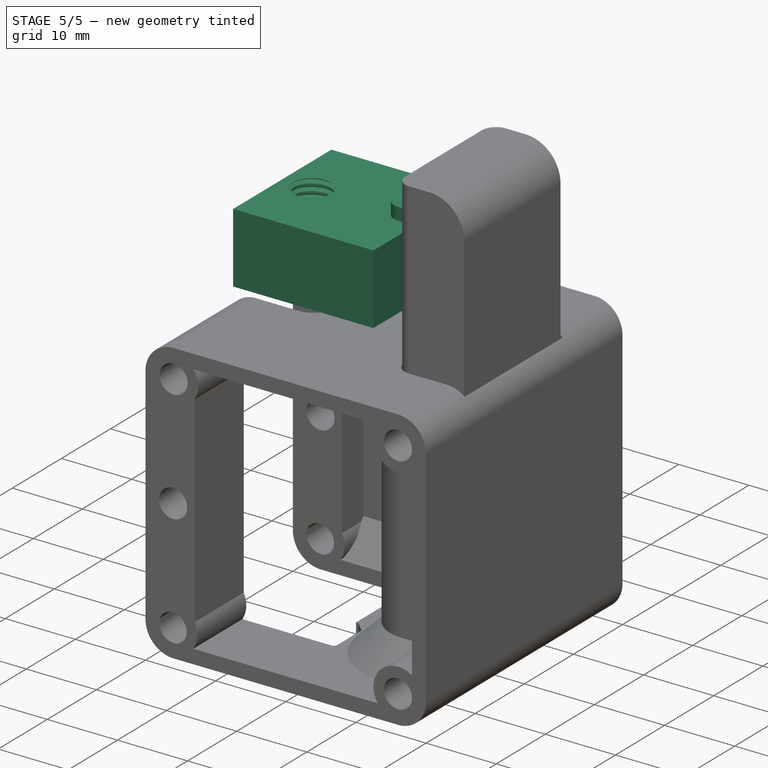
[diagram: stage 5 of 5 — iso view after this stage's code; geometry added in this stage tinted green]
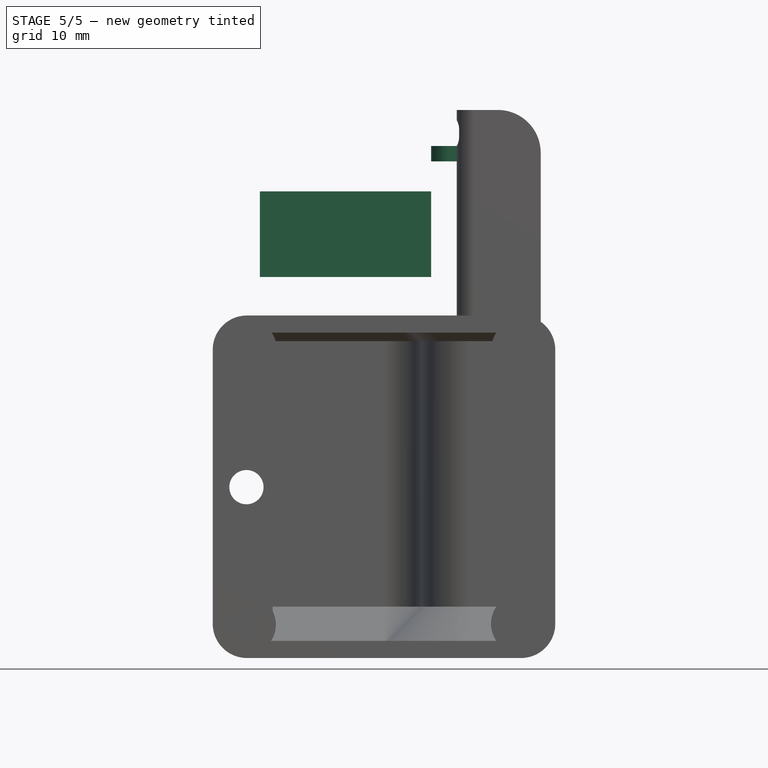
[diagram: stage 5 of 5 — front view after this stage's code; geometry added in this stage tinted green]
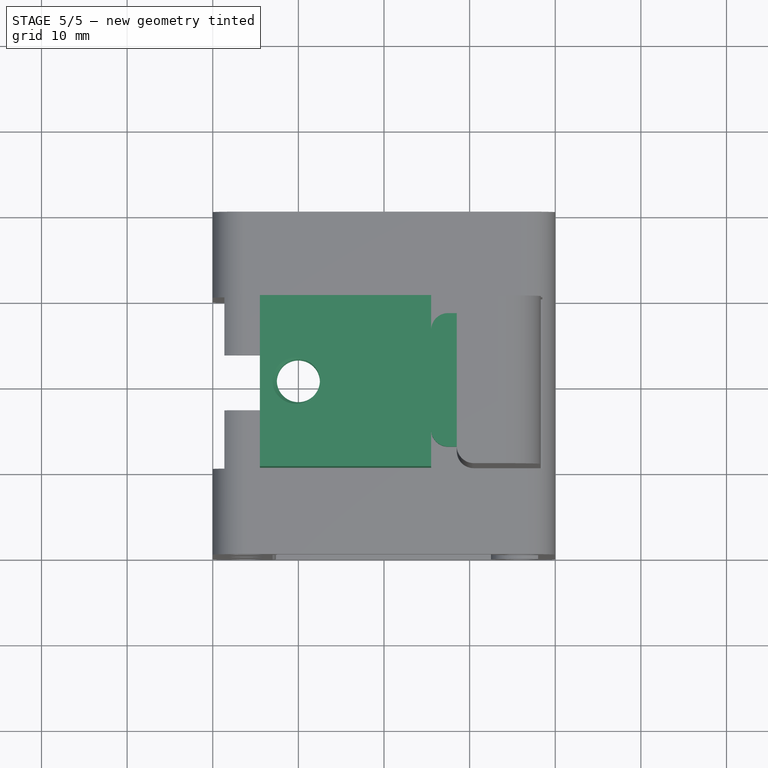
[diagram: stage 5 of 5 — top view after this stage's code; geometry added in this stage tinted green]
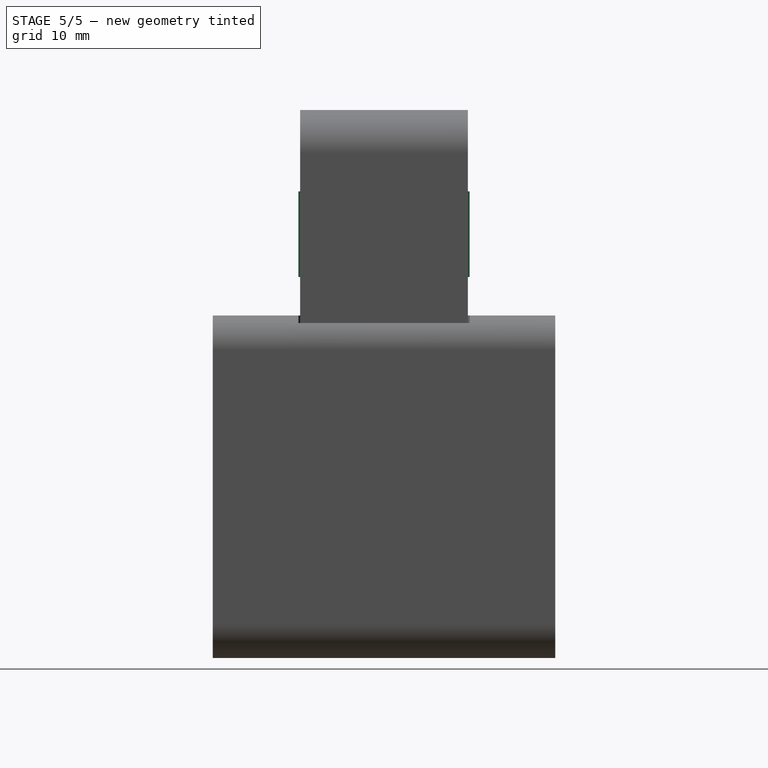
[diagram: stage 5 of 5 — right view after this stage's code; geometry added in this stage tinted green]
FEATURE [PartDesign::Body] Body
  BaseFeature = -> b_V_Slot_20x20x364_Linear_Rail_001_
  Group = -> [BaseFeature,Sketch,Pocket,Sketch001,Hole]
  Origin = -> Origin
  Placement = pos=(0,0,3) rot=(0,0,1;0rad)
  Tip = -> Hole
FEATURE [Part::FeaturePython] Tube  # WARN: FeaturePython — macro-defined, semantics opaque (R4)
  AttacherType = Attacher::AttachEngine3D
  Height = 30
  InnerRadius = 2
  OuterRadius = 3
  Placement = pos=(0,0,19.5) rot=(0,0,1;0rad)
FEATURE [PartDesign::ShapeBinder] ShapeBinder
  Placement = pos=(0,0,19.5) rot=(0,0,1;0rad)
  Support = -> [Tube]
  TraceSupport = false
FEATURE [Sketcher::SketchObject] Sketch002
  AttachmentOffset = pos=(0,0,10) rot=(0,0,1;0rad)
  FullyConstrained = false
  MapMode = 5
  Placement = pos=(0,0,59.5) rot=(0,0,1;0rad)
  Support = -> [ShapeBinder]
  sketch-geometry (5):
    g0: LineSegment StartX=-4.5 StartY=10 StartZ=0 EndX=15.5 EndY=10 EndZ=0
    g1: LineSegment StartX=15.5 StartY=10 StartZ=0 EndX=15.5 EndY=-10 EndZ=0
    g2: LineSegment StartX=15.5 StartY=-10 StartZ=0 EndX=-4.5 EndY=-10 EndZ=0
    g3: LineSegment StartX=-4.5 StartY=-10 StartZ=0 EndX=-4.5 EndY=10 EndZ=0
    g4: Circle CenterX=0 CenterY=0 CenterZ=0 NormalX=0 NormalY=0 NormalZ=1 AngleXU=0 Radius=1.93696
  constraints (12):
    c: Coincident(g0,g1)
    c: Coincident(g1,g2)
    c: Coincident(g2,g3)
    c: Coincident(g3,g0)
    c: Horizontal(g0)
    c: Horizontal(g2)
    c: Vertical(g3)
    c: Equal(g0,g1)
    c: DistanceX(g0,g0) = 20
    c: Symmetric(g1,g0,g-1)
    c: DistanceX(g0,g-1) = 4.5
    c: Coincident(g4,g-1)
FEATURE [PartDesign::Pad] Pad
  Direction = (0,0,1)
  Length = 10
  Length2 = 10
  Placement = pos=(0,0,19.5) rot=(0,0,1;0rad)
  Profile = -> Sketch002
  ReferenceAxis = -> Sketch002 [N_Axis]
  Reversed = true
  Type = 0
FEATURE [Sketcher::SketchObject] Sketch003
  FullyConstrained = false
  MapMode = 5
  Placement = pos=(0,0,59.5) rot=(0,0,1;0rad)
  Support = -> [Pad]
  sketch-geometry (1):
    g0: Circle CenterX=0 CenterY=0 CenterZ=0 NormalX=0 NormalY=0 NormalZ=1 AngleXU=0 Radius=2.34128
  constraints (1):
    c: Coincident(g0,g-1)
FEATURE [PartDesign::Hole] Hole001
  BaseFeature = -> Pad
  CustomThreadClearance = 0
  Depth = 25
  DepthType = 0
  Diameter = 5.026
  DrillForDepth = false
  DrillPoint = 1
  DrillPointAngle = 118
  HoleCutCountersinkAngle = 90
  HoleCutCustomValues = false
  HoleCutDepth = 0
  HoleCutDiameter = 6.1
  HoleCutType = 0
  ModelThread = true
  Placement = pos=(0,0,19.5) rot=(0,0,1;0rad)
  Profile = -> Sketch003
  Tapered = false
  TaperedAngle = 90
  ThreadClass = 0
  ThreadDepth = 25
  ThreadDepthType = 0
  ThreadDirection = 0
  ThreadFit = 0
  ThreadSize = 14
  ThreadType = 1
  Threaded = true
  UseCustomThreadClearance = false
FEATURE [PartDesign::SubtractivePipe] SubtractivePipe
  AuxilleryCurvelinear = true
  AuxillerySpineTangent = false
  BaseFeature = -> Pocket006
  Binormal = (0,0,0)
  Mode = 0
  Profile = -> Pocket006 [Face31]
  Spine = -> Pocket006 [Edge4,Edge2,Edge1,Edge11]
  SpineTangent = false
  Transformation = 0
  Transition = 0
FEATURE [PartDesign::Pad] Pad005
  BaseFeature = -> SubtractivePipe
  Direction = (-1,0,0)
  Length = 3
  Length2 = 10
  Profile = -> SubtractivePipe [Face13]
  Type = 0
FEATURE [PartDesign::Fillet] Fillet001
  Base = -> Pad005 [Edge52,Edge93]
  BaseFeature = -> Pad005
  Radius = 2
  SupportTransform = false
  UseAllEdges = false
FEATURE [PartDesign::Pad] Pad006
  BaseFeature = -> Fillet001
  Direction = (-1,0,0)
  Length = 0.5
  Length2 = 10
  Profile = -> Fillet001 [Face33]
  Type = 0
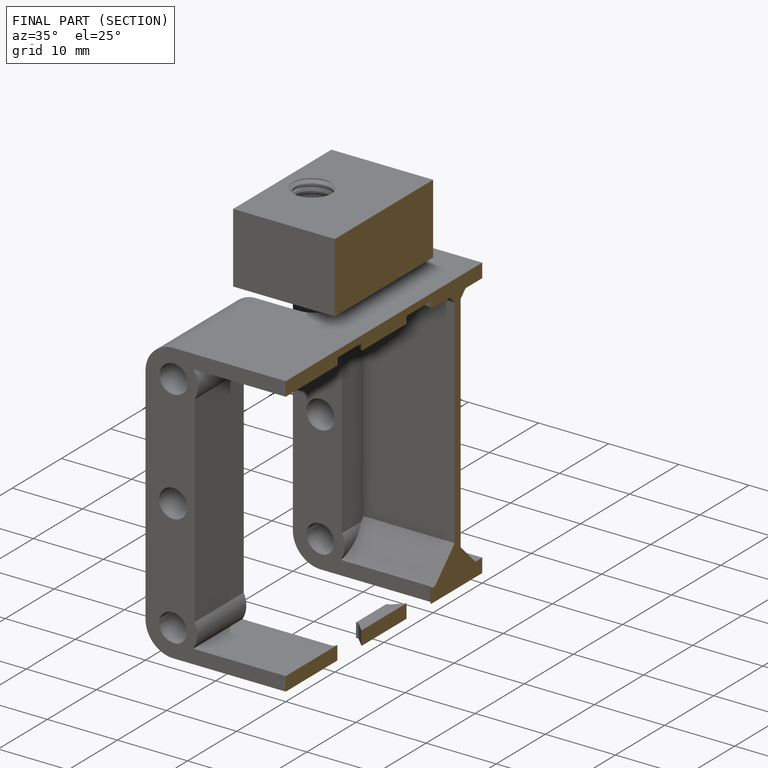
[diagram: finished part — half-section view (interior)]
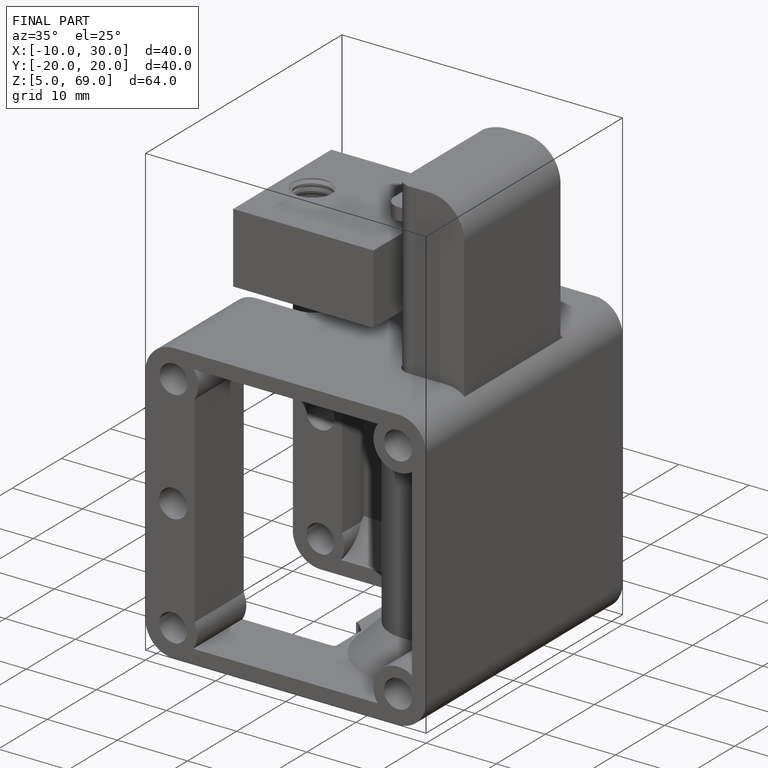
[diagram: finished part — iso view with bounding-box wireframe]
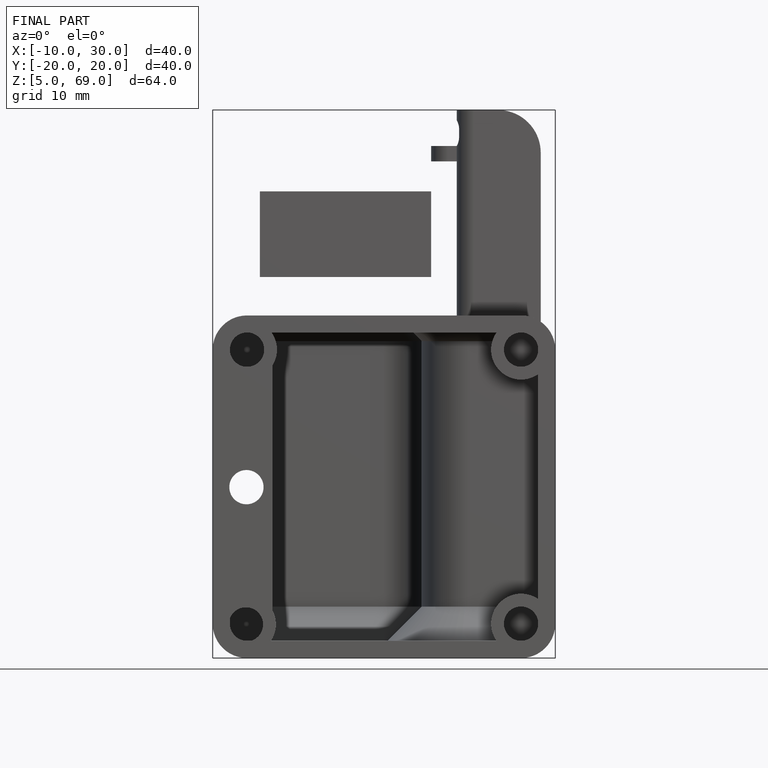
[diagram: finished part — front view with bounding-box wireframe]
